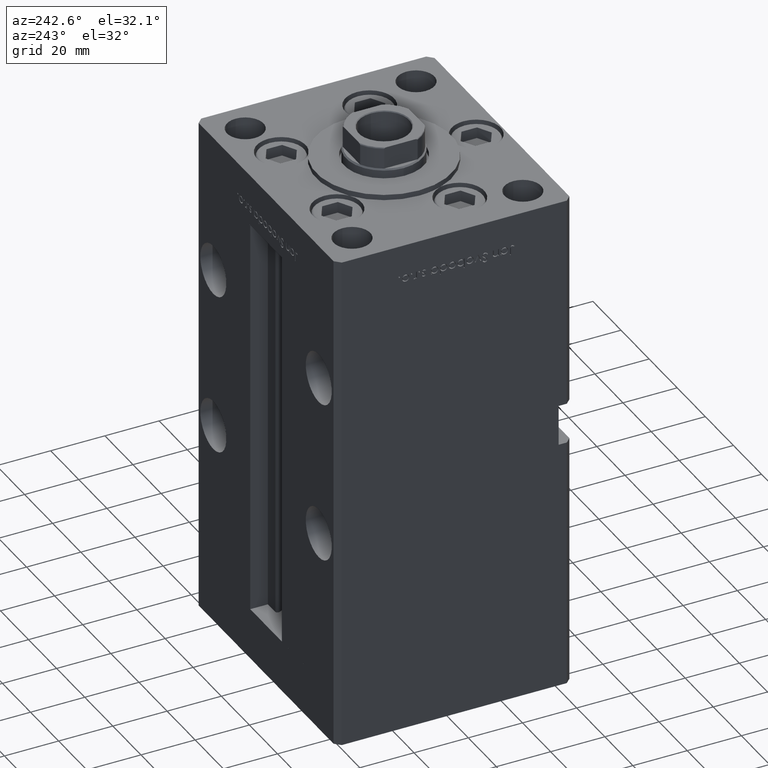
[diagram: clean part render]
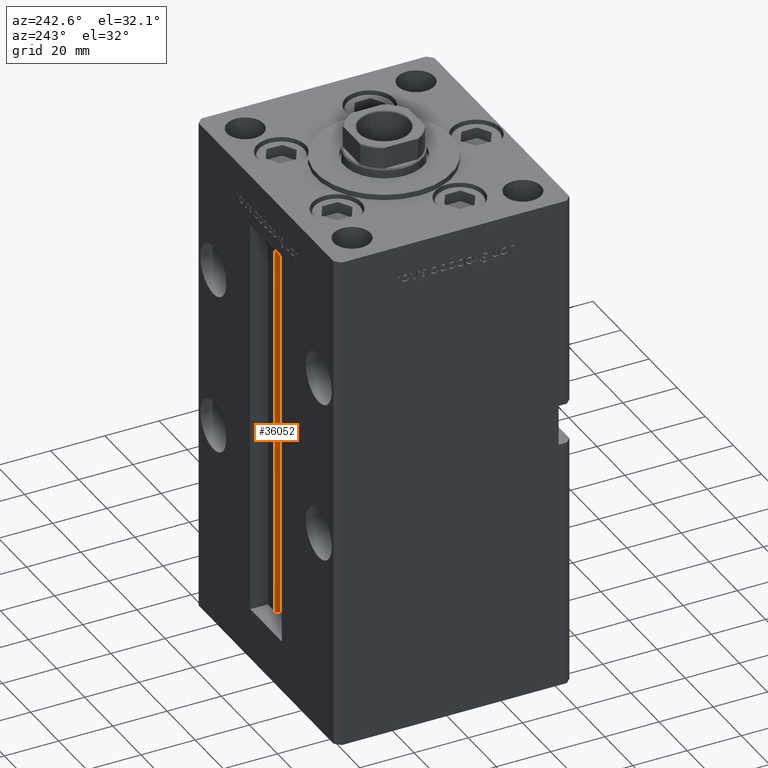
[diagram: same view with one face highlighted and labeled with its STEP entity id]
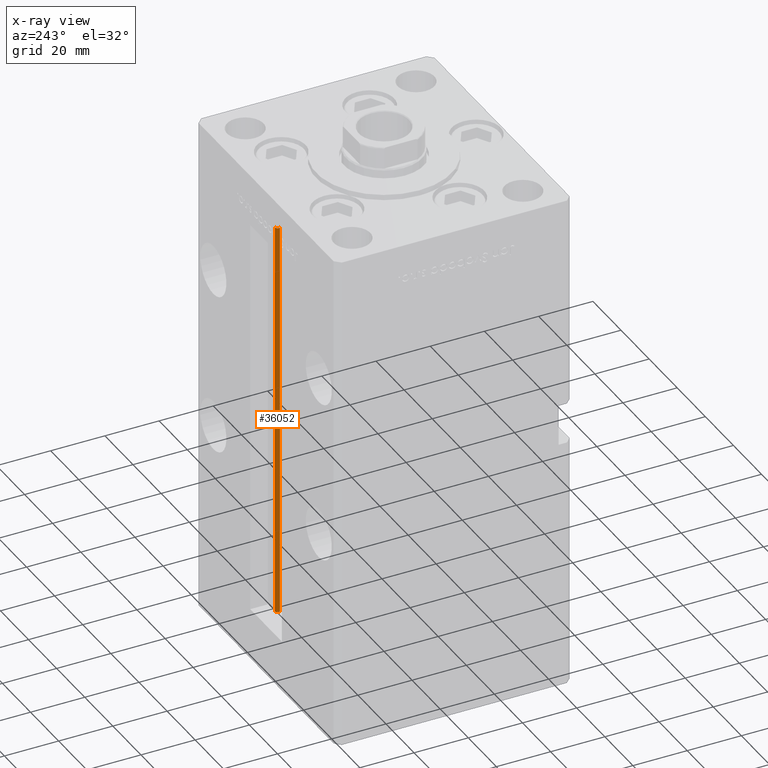
[diagram: x-ray of the same camera — body ghosted, the highlighted face saturated]
A machine part, auxiliary view. The second image highlights one B-rep face of the part: STEP entity #36052.
The next image is the same camera in x-ray: the body ghosted, the highlighted face saturated — about 0% of this face is hidden behind the body in this view.
In plain terms, the highlighted cylindrical surface (edge-blend (fillet) strip) has radius 0.9333 mm, axis along (0, 0, 1).
Its self-contained STEP definition (entity closure, byte-faithful):
#169 = AXIS2_PLACEMENT_3D ( 'NONE', #7910, #32644, #28889 ) ;
#790 = EDGE_CURVE ( 'NONE', #32793, #26326, #12477, .T. ) ;
#1344 = DIRECTION ( 'NONE',  ( 1.000000000000000000, 0.000000000000000000, 0.000000000000000000 ) ) ;
#3184 = DIRECTION ( 'NONE',  ( 1.000000000000000000, 0.000000000000000000, 0.000000000000000000 ) ) ;
#3973 = CIRCLE ( 'NONE', #43420, 0.9333333333339999260 ) ;
#5147 = ORIENTED_EDGE ( 'NONE', *, *, #42554, .F. ) ;
#6359 = EDGE_CURVE ( 'NONE', #50308, #8885, #3973, .T. ) ;
#7910 = CARTESIAN_POINT ( 'NONE',  ( 6.183333333333996151, 36.06666666666599497, 0.000000000000000000 ) ) ;
#8306 = ORIENTED_EDGE ( 'NONE', *, *, #6359, .T. ) ;
#8558 = EDGE_LOOP ( 'NONE', ( #5147, #17876, #47290, #8306 ) ) ;
#8885 = VERTEX_POINT ( 'NONE', #34098 ) ;
#12477 = CIRCLE ( 'NONE', #44231, 0.9333333333339999260 ) ;
#12948 = CARTESIAN_POINT ( 'NONE',  ( 5.375042956467944499, 35.59999999999899245, 0.000000000000000000 ) ) ;
#17876 = ORIENTED_EDGE ( 'NONE', *, *, #790, .F. ) ;
#21280 = LINE ( 'NONE', #12948, #36275 ) ;
#21625 = CARTESIAN_POINT ( 'NONE',  ( 6.183333333333996151, 37.00000000000000000, 0.000000000000000000 ) ) ;
#22697 = VECTOR ( 'NONE', #48338, 1000.000000000000000 ) ;
#26326 = VERTEX_POINT ( 'NONE', #21625 ) ;
#27113 = EDGE_CURVE ( 'NONE', #32793, #50308, #21280, .T. ) ;
#28889 = DIRECTION ( 'NONE',  ( 1.000000000000000000, 0.000000000000000000, 0.000000000000000000 ) ) ;
#29376 = DIRECTION ( 'NONE',  ( -0.000000000000000000, -0.000000000000000000, 1.000000000000000000 ) ) ;
#29615 = DIRECTION ( 'NONE',  ( 0.000000000000000000, 0.000000000000000000, -1.000000000000000000 ) ) ;
#32382 = FACE_OUTER_BOUND ( 'NONE', #8558, .T. ) ;
#32644 = DIRECTION ( 'NONE',  ( -0.000000000000000000, -0.000000000000000000, 1.000000000000000000 ) ) ;
#32793 = VERTEX_POINT ( 'NONE', #45329 ) ;
#34098 = CARTESIAN_POINT ( 'NONE',  ( 6.183333333333996151, 37.00000000000000000, 148.5000000000000000 ) ) ;
#36052 = ADVANCED_FACE ( 'NONE', ( #32382 ), #36655, .T. ) ;
#36275 = VECTOR ( 'NONE', #29376, 1000.000000000000000 ) ;
#36551 = CARTESIAN_POINT ( 'NONE',  ( 5.375042956467946276, 35.59999999999899245, 148.5000000000000000 ) ) ;
#36655 = CYLINDRICAL_SURFACE ( 'NONE', #169, 0.9333333333339999260 ) ;
#42554 = EDGE_CURVE ( 'NONE', #26326, #8885, #44308, .T. ) ;
#43420 = AXIS2_PLACEMENT_3D ( 'NONE', #49993, #29615, #1344 ) ;
#44231 = AXIS2_PLACEMENT_3D ( 'NONE', #53140, #49111, #3184 ) ;
#44308 = LINE ( 'NONE', #52635, #22697 ) ;
#45329 = CARTESIAN_POINT ( 'NONE',  ( 5.375042956467944499, 35.59999999999899245, 0.000000000000000000 ) ) ;
#47290 = ORIENTED_EDGE ( 'NONE', *, *, #27113, .T. ) ;
#48338 = DIRECTION ( 'NONE',  ( -0.000000000000000000, -0.000000000000000000, 1.000000000000000000 ) ) ;
#49111 = DIRECTION ( 'NONE',  ( -0.000000000000000000, -0.000000000000000000, -1.000000000000000000 ) ) ;
#49993 = CARTESIAN_POINT ( 'NONE',  ( 6.183333333333996151, 36.06666666666599497, 148.5000000000000000 ) ) ;
#50308 = VERTEX_POINT ( 'NONE', #36551 ) ;
#52635 = CARTESIAN_POINT ( 'NONE',  ( 6.183333333333996151, 37.00000000000000000, 0.000000000000000000 ) ) ;
#53140 = CARTESIAN_POINT ( 'NONE',  ( 6.183333333333996151, 36.06666666666599497, 0.000000000000000000 ) ) ;